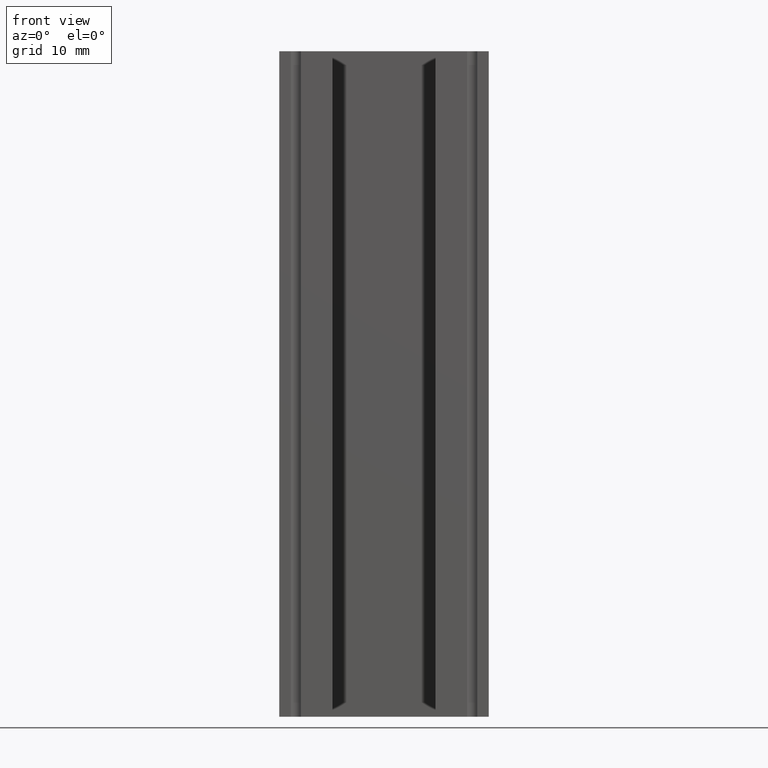
[diagram: clean part render]
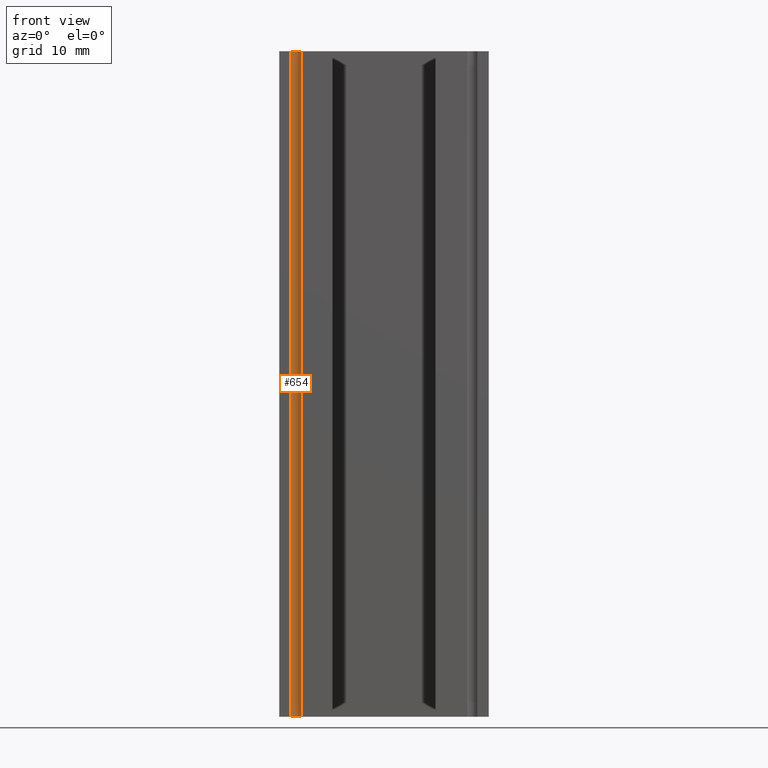
[diagram: same view with one face highlighted and labeled with its STEP entity id]
A machine part, front view. The second image highlights one B-rep face of the part: STEP entity #654.
In plain terms, the highlighted cylindrical surface (edge-blend (fillet) strip) has radius 1 mm, axis along (0, 0, -1).
Its self-contained STEP definition (entity closure, byte-faithful):
#46=FACE_OUTER_BOUND('',#80,.T.);
#80=EDGE_LOOP('',(#461,#462,#463,#464));
#115=LINE('',#941,#203);
#116=LINE('',#944,#204);
#203=VECTOR('',#766,10.);
#204=VECTOR('',#769,10.);
#291=CIRCLE('',#714,1.);
#292=CIRCLE('',#715,1.);
#301=VERTEX_POINT('',#937);
#302=VERTEX_POINT('',#938);
#303=VERTEX_POINT('',#940);
#304=VERTEX_POINT('',#942);
#365=EDGE_CURVE('',#301,#302,#291,.T.);
#366=EDGE_CURVE('',#303,#301,#115,.T.);
#367=EDGE_CURVE('',#304,#303,#292,.T.);
#368=EDGE_CURVE('',#302,#304,#116,.T.);
#461=ORIENTED_EDGE('',*,*,#365,.F.);
#462=ORIENTED_EDGE('',*,*,#366,.F.);
#463=ORIENTED_EDGE('',*,*,#367,.F.);
#464=ORIENTED_EDGE('',*,*,#368,.F.);
#650=CYLINDRICAL_SURFACE('',#713,1.);
#654=ADVANCED_FACE('',(#46),#650,.F.);
#713=AXIS2_PLACEMENT_3D('',#936,#762,#763);
#714=AXIS2_PLACEMENT_3D('',#939,#764,#765);
#715=AXIS2_PLACEMENT_3D('',#943,#767,#768);
#762=DIRECTION('center_axis',(0.,0.,-1.));
#763=DIRECTION('ref_axis',(0.759934207678529,0.650000000000004,0.));
#764=DIRECTION('center_axis',(0.,0.,1.));
#765=DIRECTION('ref_axis',(0.759934207678529,0.650000000000004,0.));
#766=DIRECTION('',(0.,0.,-1.));
#767=DIRECTION('center_axis',(0.,0.,-1.));
#768=DIRECTION('ref_axis',(0.759934207678529,0.650000000000004,0.));
#769=DIRECTION('',(0.,0.,1.));
#936=CARTESIAN_POINT('Origin',(-13.2498639199982,-33.6499946946739,100.));
#937=CARTESIAN_POINT('',(-12.4899297123197,-32.9999946946739,0.));
#938=CARTESIAN_POINT('',(-14.0097981276767,-32.9999946946739,0.));
#939=CARTESIAN_POINT('Origin',(-13.2498639199982,-33.6499946946739,0.));
#940=CARTESIAN_POINT('',(-12.4899297123197,-32.9999946946739,100.));
#941=CARTESIAN_POINT('',(-12.4899297123197,-32.9999946946739,100.));
#942=CARTESIAN_POINT('',(-14.0097981276767,-32.9999946946739,100.));
#943=CARTESIAN_POINT('Origin',(-13.2498639199982,-33.6499946946739,100.));
#944=CARTESIAN_POINT('',(-14.0097981276767,-32.9999946946739,100.));